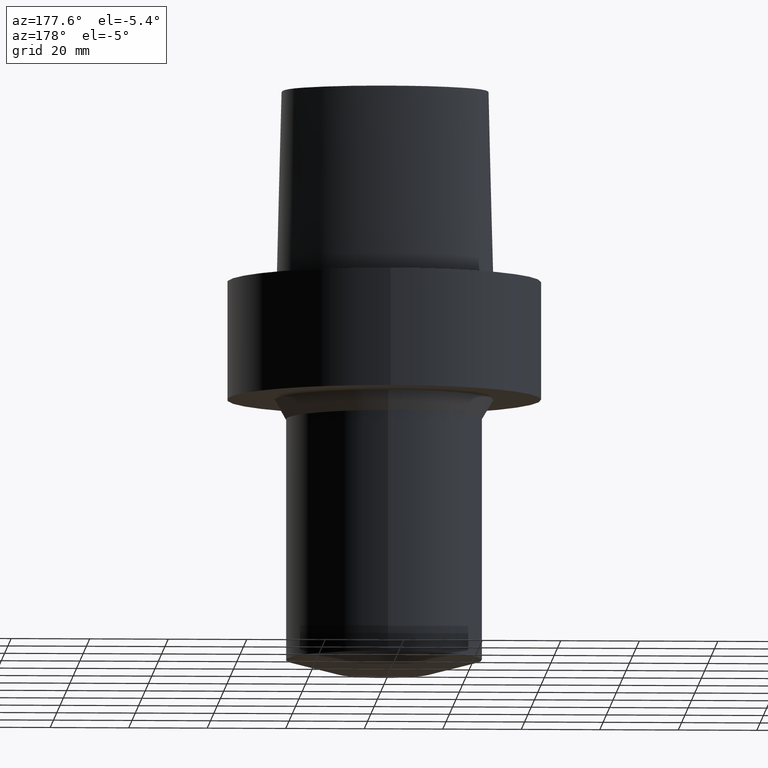
[diagram: clean part render]
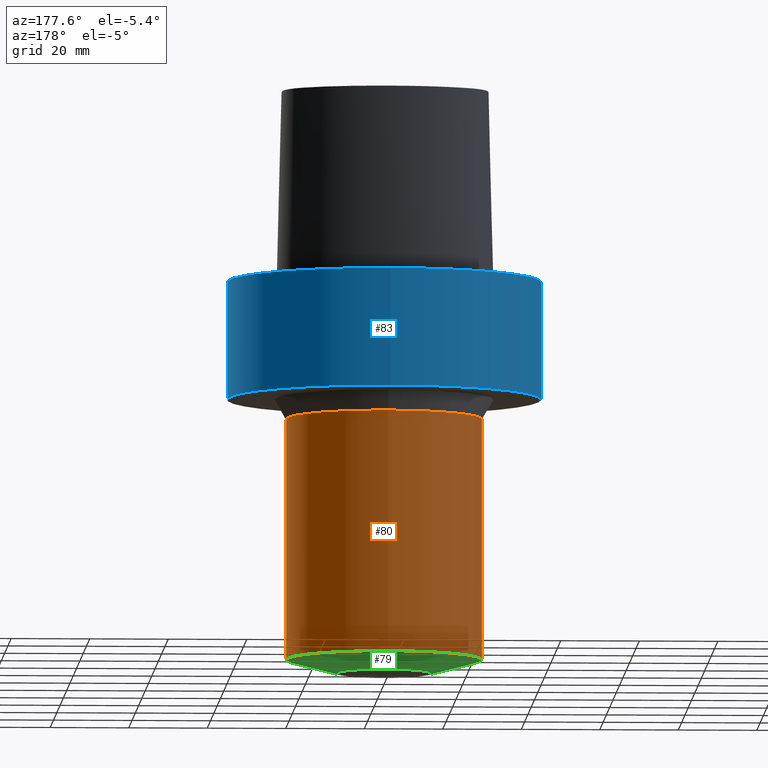
[diagram: same view with three faces highlighted in distinct colors, each labeled with its STEP entity id]
A machine part, auxiliary view with three faces highlighted in distinct colors.
Their STEP definitions:

[orange] entity #80 — the highlighted cylindrical surface (bore or boss wall) has radius 25 mm, axis along (0, 0, -1).
#80=ADVANCED_FACE('',(#97,#98),#99,.T.);
#97=FACE_BOUND('',#504,.T.);
#98=FACE_BOUND('',#505,.T.);
#99=CYLINDRICAL_SURFACE('',#506,25.0);
#504=EDGE_LOOP('',(#538));
#505=EDGE_LOOP('',(#539));
#506=AXIS2_PLACEMENT_3D('',#540,#541,#542);
#538=ORIENTED_EDGE('',*,*,#564,.F.);
#539=ORIENTED_EDGE('',*,*,#563,.T.);
#540=CARTESIAN_POINT('',(4.02653643314034E-015,8.05307286628068E-015,-65.7583302539765));
#541=DIRECTION('',(6.12323399573677E-017,1.22464679914735E-016,-1.0));
#542=DIRECTION('',(-1.23259516440783E-032,1.0,1.22464679914735E-016));
#563=EDGE_CURVE('',#576,#576,#577,.T.);
#564=EDGE_CURVE('',#578,#578,#579,.T.);
#576=VERTEX_POINT('',#739);
#577=CIRCLE('',#740,25.0);
#578=VERTEX_POINT('',#741);
#579=CIRCLE('',#742,25.0);
#739=CARTESIAN_POINT('',(5.90994096752593E-015,25.0,-96.516660503921));
#740=AXIS2_PLACEMENT_3D('',#753,#754,#755);
#741=CARTESIAN_POINT('',(2.14313189875475E-015,25.0,-35.0000000040319));
#742=AXIS2_PLACEMENT_3D('',#756,#757,#758);
#753=CARTESIAN_POINT('',(5.90994096752593E-015,1.18198819350519E-014,-96.516660503921));
#754=DIRECTION('',(-6.12323399573677E-017,-1.22464679914735E-016,1.0));
#755=DIRECTION('',(-1.23259516440783E-032,1.0,1.22464679914735E-016));
#756=CARTESIAN_POINT('',(2.14313189875475E-015,4.2862637975095E-015,-35.0000000040319));
#757=DIRECTION('',(-6.12323399573677E-017,-1.22464679914735E-016,1.0));
#758=DIRECTION('',(-1.23259516440783E-032,1.0,1.22464679914735E-016));

[blue] entity #83 — the highlighted cylindrical surface (bore or boss wall) has radius 39.9925 mm, axis along (0, 0, -1).
#83=ADVANCED_FACE('',(#106,#107),#108,.T.);
#106=FACE_BOUND('',#513,.T.);
#107=FACE_BOUND('',#514,.T.);
#108=CYLINDRICAL_SURFACE('',#515,39.9925);
#513=EDGE_LOOP('',(#553));
#514=EDGE_LOOP('',(#554));
#515=AXIS2_PLACEMENT_3D('',#555,#556,#557);
#553=ORIENTED_EDGE('',*,*,#561,.F.);
#554=ORIENTED_EDGE('',*,*,#566,.T.);
#555=CARTESIAN_POINT('',(9.18485099360515E-016,1.83697019872103E-015,-15.0));
#556=DIRECTION('',(6.12323399573677E-017,1.22464679914735E-016,-1.0));
#557=DIRECTION('',(-1.23259516440783E-032,1.0,1.22464679914735E-016));
#561=EDGE_CURVE('',#572,#572,#573,.T.);
#566=EDGE_CURVE('',#582,#582,#583,.T.);
#572=VERTEX_POINT('',#735);
#573=CIRCLE('',#736,39.9925);
#582=VERTEX_POINT('',#745);
#583=CIRCLE('',#746,39.9925);
#735=CARTESIAN_POINT('',(-4.92945621125802E-031,39.9925,4.89766871149005E-015));
#736=AXIS2_PLACEMENT_3D('',#747,#748,#749);
#745=CARTESIAN_POINT('',(1.83697019872103E-015,39.9925,-30.0));
#746=AXIS2_PLACEMENT_3D('',#762,#763,#764);
#747=CARTESIAN_POINT('',(0.0,0.0,0.0));
#748=DIRECTION('',(-6.12323399573677E-017,-1.22464679914735E-016,1.0));
#749=DIRECTION('',(-1.23259516440783E-032,1.0,1.22464679914735E-016));
#762=CARTESIAN_POINT('',(1.83697019872103E-015,3.67394039744206E-015,-30.0));
#763=DIRECTION('',(-6.12323399573677E-017,-1.22464679914735E-016,1.0));
#764=DIRECTION('',(-1.23259516440783E-032,1.0,1.22464679914735E-016));

[green] entity #79 — the highlighted conical surface has half-angle 75 deg.
#79=ADVANCED_FACE('',(#94,#95),#96,.T.);
#94=FACE_BOUND('',#501,.T.);
#95=FACE_BOUND('',#502,.T.);
#96=CONICAL_SURFACE('',#503,18.5000000005548,1.30899693937098);
#501=EDGE_LOOP('',(#533));
#502=EDGE_LOOP('',(#534));
#503=AXIS2_PLACEMENT_3D('',#535,#536,#537);
#533=ORIENTED_EDGE('',*,*,#563,.F.);
#534=ORIENTED_EDGE('',*,*,#562,.T.);
#535=CARTESIAN_POINT('',(6.01658748163135E-015,1.20331749632627E-014,-98.2583302519605));
#536=DIRECTION('',(-6.12323399573677E-017,-1.22464679914735E-016,1.0));
#537=DIRECTION('',(-1.23259516440783E-032,1.0,1.22464679914735E-016));
#562=EDGE_CURVE('',#574,#574,#575,.T.);
#563=EDGE_CURVE('',#576,#576,#577,.T.);
#574=VERTEX_POINT('',#737);
#575=CIRCLE('',#738,12.0000000011097);
#576=VERTEX_POINT('',#739);
#577=CIRCLE('',#740,25.0);
#737=CARTESIAN_POINT('',(6.12323399573677E-015,12.0000000011097,-100.0));
#738=AXIS2_PLACEMENT_3D('',#750,#751,#752);
#739=CARTESIAN_POINT('',(5.90994096752593E-015,25.0,-96.516660503921));
#740=AXIS2_PLACEMENT_3D('',#753,#754,#755);
#750=CARTESIAN_POINT('',(6.12323399573677E-015,1.22464679914735E-014,-100.0));
#751=DIRECTION('',(-6.12323399573677E-017,-1.22464679914735E-016,1.0));
#752=DIRECTION('',(-1.23259516440783E-032,1.0,1.22464679914735E-016));
#753=CARTESIAN_POINT('',(5.90994096752593E-015,1.18198819350519E-014,-96.516660503921));
#754=DIRECTION('',(-6.12323399573677E-017,-1.22464679914735E-016,1.0));
#755=DIRECTION('',(-1.23259516440783E-032,1.0,1.22464679914735E-016));